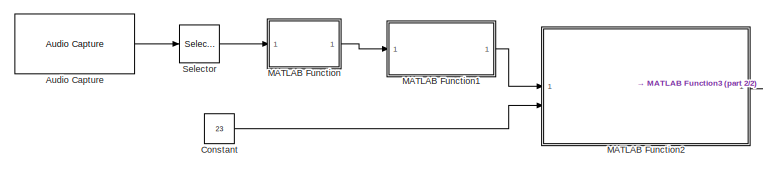
[diagram: root canvas - part 1/2, top left region]
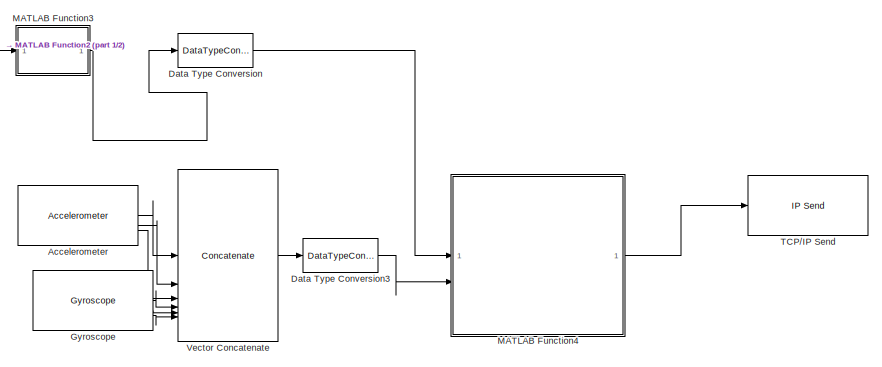
[diagram: root canvas - part 2/2, right side, full height]
MODEL slx_4cc83dfa9ffe
KIND model
CONFIG AbsTol = auto
CONFIG EnableMultiTasking = off
CONFIG FixedStep = auto
CONFIG MaxStep = auto
CONFIG MinStep = auto
CONFIG RelTol = 1e-3
CONFIG SampleTimeConstraint = Unconstrained
CONFIG SolverName = FixedStepAuto
CONFIG StartTime = 0.0
CONFIG StopTime = 20
BLOCK [Reference] Accelerometer  REF=androidsensorlib/Accelerometer
  SourceBlock = androidsensorlib/Accelerometer
  SourceType = codertarget.internal.androidAccelerometer
BLOCK [Reference] Audio Capture  REF=androidaudiovideolib/Audio Capture
  SourceBlock = androidaudiovideolib/Audio Capture
  SourceType = codertarget.internal.androidAudioCapture
BLOCK [Constant] Constant
  Value = 23
BLOCK [DataTypeConversion] Data Type Conversion
  OutDataTypeStr = int16
  RndMeth = Floor
BLOCK [DataTypeConversion] Data Type Conversion3
  OutDataTypeStr = single
  RndMeth = Floor
  SaturateOnIntegerOverflow = off
BLOCK [Reference] Gyroscope  REF=androidsensorlib/Gyroscope
  SourceBlock = androidsensorlib/Gyroscope
  SourceType = codertarget.internal.androidGyroscope
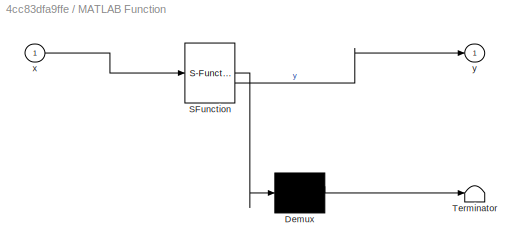
BLOCK [SubSystem] MATLAB Function
  ErrorFcn = Stateflow.Translate.translate
  PermitHierarchicalResolution = ExplicitOnly
  SFBlockType = MATLAB Function
  TreatAsAtomicUnit = on
BLOCK [Demux] MATLAB Function/ Demux 
  Outputs = 1
BLOCK [S-Function] MATLAB Function/ SFunction 
  EnableBusSupport = on
  FunctionName = sf_sfun
  PortCounts = [1 2]
  SFcnIsStateOwnerBlock = off
  SFunctionDeploymentMode = off
  Tag = Stateflow S-Function 5
BLOCK [Terminator] MATLAB Function/ Terminator 
BLOCK [Inport] MATLAB Function/x
BLOCK [Outport] MATLAB Function/y
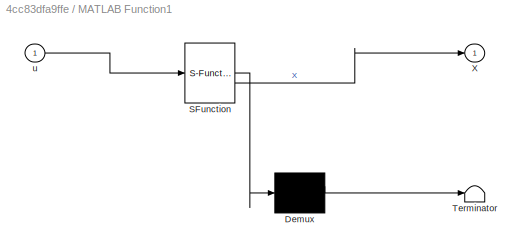
BLOCK [SubSystem] MATLAB Function1
  ErrorFcn = Stateflow.Translate.translate
  PermitHierarchicalResolution = ExplicitOnly
  SFBlockType = MATLAB Function
  TreatAsAtomicUnit = on
BLOCK [Demux] MATLAB Function1/ Demux 
  Outputs = 1
BLOCK [S-Function] MATLAB Function1/ SFunction 
  EnableBusSupport = on
  FunctionName = sf_sfun
  PortCounts = [1 2]
  SFcnIsStateOwnerBlock = off
  SFunctionDeploymentMode = off
  Tag = Stateflow S-Function 6
BLOCK [Terminator] MATLAB Function1/ Terminator 
BLOCK [Outport] MATLAB Function1/X
BLOCK [Inport] MATLAB Function1/u
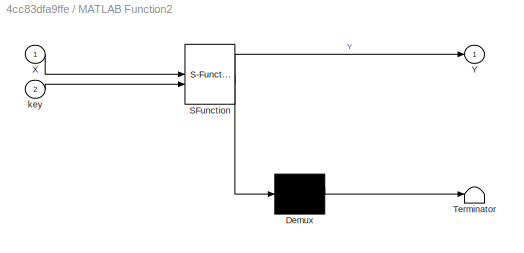
BLOCK [SubSystem] MATLAB Function2
  ErrorFcn = Stateflow.Translate.translate
  PermitHierarchicalResolution = ExplicitOnly
  SFBlockType = MATLAB Function
  TreatAsAtomicUnit = on
BLOCK [Demux] MATLAB Function2/ Demux 
  Outputs = 1
BLOCK [S-Function] MATLAB Function2/ SFunction 
  EnableBusSupport = on
  FunctionName = sf_sfun
  PortCounts = [2 2]
  SFcnIsStateOwnerBlock = off
  SFunctionDeploymentMode = off
  Tag = Stateflow S-Function 7
BLOCK [Terminator] MATLAB Function2/ Terminator 
BLOCK [Inport] MATLAB Function2/X
BLOCK [Outport] MATLAB Function2/Y
BLOCK [Inport] MATLAB Function2/key
  Port = 2
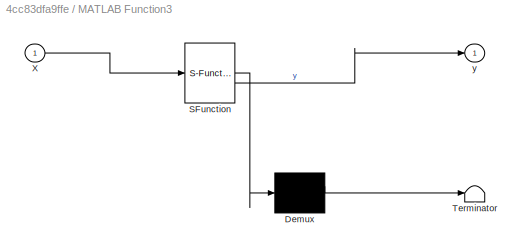
BLOCK [SubSystem] MATLAB Function3
  ErrorFcn = Stateflow.Translate.translate
  PermitHierarchicalResolution = ExplicitOnly
  SFBlockType = MATLAB Function
  TreatAsAtomicUnit = on
BLOCK [Demux] MATLAB Function3/ Demux 
  Outputs = 1
BLOCK [S-Function] MATLAB Function3/ SFunction 
  EnableBusSupport = on
  FunctionName = sf_sfun
  PortCounts = [1 2]
  SFcnIsStateOwnerBlock = off
  SFunctionDeploymentMode = off
  Tag = Stateflow S-Function 8
BLOCK [Terminator] MATLAB Function3/ Terminator 
BLOCK [Inport] MATLAB Function3/X
BLOCK [Outport] MATLAB Function3/y
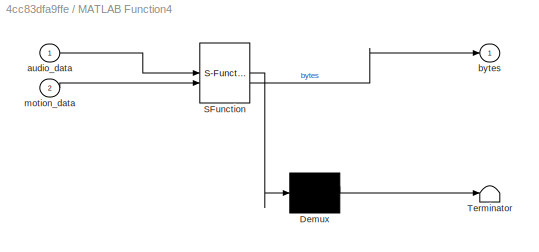
BLOCK [SubSystem] MATLAB Function4
  ErrorFcn = Stateflow.Translate.translate
  PermitHierarchicalResolution = ExplicitOnly
  SFBlockType = MATLAB Function
  TreatAsAtomicUnit = on
BLOCK [Demux] MATLAB Function4/ Demux 
  Outputs = 1
BLOCK [S-Function] MATLAB Function4/ SFunction 
  EnableBusSupport = on
  FunctionName = sf_sfun
  PortCounts = [2 2]
  SFcnIsStateOwnerBlock = off
  SFunctionDeploymentMode = off
  Tag = Stateflow S-Function 2
BLOCK [Terminator] MATLAB Function4/ Terminator 
BLOCK [Inport] MATLAB Function4/audio_data
BLOCK [Outport] MATLAB Function4/bytes
BLOCK [Inport] MATLAB Function4/motion_data
  Port = 2
BLOCK [Selector] Selector
  IndexOptions = Select all,Index vector (dialog)
  Indices = [1 3],1
  InputPortWidth = 3
  NumberOfDimensions = 2
  OutputSizes = 1,1
BLOCK [Reference] TCP//IP Send  REF=androidcommunicationlib/TCP//IP Send
  SourceBlock = androidcommunicationlib/TCP//IP Send
  SourceType = codertarget.internal.androidTCPSend
BLOCK [Concatenate] Vector Concatenate
  NumInputs = 6
LINE Accelerometer:1 -> Vector Concatenate:1
LINE Accelerometer:2 -> Vector Concatenate:2
LINE Accelerometer:3 -> Vector Concatenate:3
LINE Audio Capture:1 -> Selector:1
LINE Constant:1 -> MATLAB Function2:2
LINE Data Type Conversion3:1 -> MATLAB Function4:2
LINE Data Type Conversion:1 -> MATLAB Function4:1
LINE Gyroscope:1 -> Vector Concatenate:4
LINE Gyroscope:2 -> Vector Concatenate:5
LINE Gyroscope:3 -> Vector Concatenate:6
LINE MATLAB Function1:1 -> MATLAB Function2:1
LINE MATLAB Function2:1 -> MATLAB Function3:1
LINE MATLAB Function3:1 -> Data Type Conversion:1
LINE MATLAB Function4:1 -> TCP//IP Send:1
LINE MATLAB Function:1 -> MATLAB Function1:1
LINE Selector:1 -> MATLAB Function:1
LINE Vector Concatenate:1 -> Data Type Conversion3:1
CHART MATLAB Function states=1 transitions=1
  STATE_LABEL 'eML_blk_kernel()'
  STATE_LABEL "SCRIPT:\nfunction y = applyHann(x)\n\nx = double(x);\n[N,C] = size(x);\nn = (0:N-1)';                        % column\nw = 0.5 - 0.5*cos(2*pi*n/(N-1));     % Hann\ny = x .* repmat(w,1,C);              % element-wise multiply\nend\n"
CHART MATLAB Function1 states=1 transitions=1
  STATE_LABEL 'eML_blk_kernel()'
  STATE_LABEL 'SCRIPT:\nfunction X = performFFT(u)\n\n\nx = complex(double(u));          % avoid complex–integer issues\nN = size(x,1);                   % FFT length = frame length\nX = fft(x, N, 1);                % FFT along dim-1 (rows)\nend\n'
CHART MATLAB Function2 states=1 transitions=1
  STATE_LABEL 'eML_blk_kernel()'
  STATE_LABEL "SCRIPT:\nfunction Y = scramblePerm(X, key)\n\n[N,C] = size(X);\nY = complex(zeros(N,C,'like',X));\n\n\nposIdx = 2:N/2;                \nnegIdx = N - posIdx + 2;       \nK = numel(posIdx);  if K==0, Y = X; return; end\n\n\nstate = hash_key(uint8(key));\nstate = bitxor(state, uint32(N));\n\n\nperm = scrambling(state, K);\npidx = posIdx(perm);\n\nY(posIdx,:)      = X(pidx,:);\nY(negIdx,:)      = conj(Y(posIdx,:));\nY([1,...<+969ch>"
CHART MATLAB Function3 states=1 transitions=1
  STATE_LABEL 'eML_blk_kernel()'
  STATE_LABEL 'SCRIPT:\nfunction y = performIFFT(X)\n\nXc = complex(double(X));          % ensure complex double\nN  = size(Xc,1);\ny  = real(ifft(Xc, N, 1));        % IFFT along rows (frame length)\nend\n'
CHART MATLAB Function4 states=1 transitions=1
  STATE_LABEL 'eML_blk_kernel()'
  STATE_LABEL "SCRIPT:\nfunction bytes = pack_audio_motion_sync(audio_data, motion_data)\n%#codegen\nassert(numel(audio_data)==4410 && isa(audio_data,'int16'));\nassert(numel(motion_data)==6      && isa(motion_data,'single'));\nassert(isscalar(t_ms)         && isa(t_ms,'uint32'));\nbytes = zeros(8848,1,'uint8');\nbytes(5:28)     = typecast(single(motion_data(:)).', 'uint8');   % 24\nbytes(29:8848)  = typecast(audio_data...<+36ch>"
CHART  states=0 transitions=0
CHART  states=0 transitions=0
CHART  states=0 transitions=0
CHART  states=0 transitions=0
CHART  states=0 transitions=0
